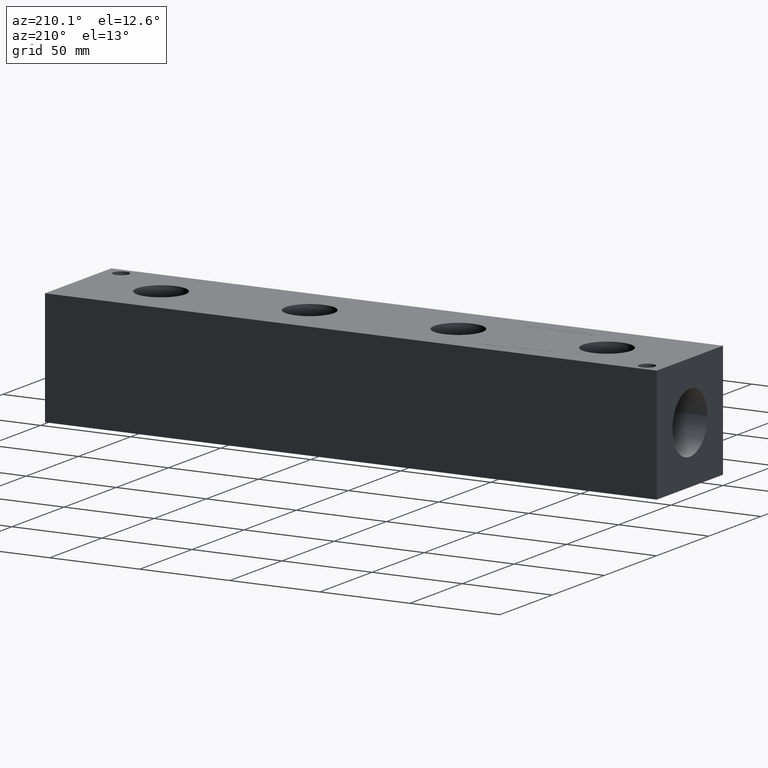
[diagram: clean part render]
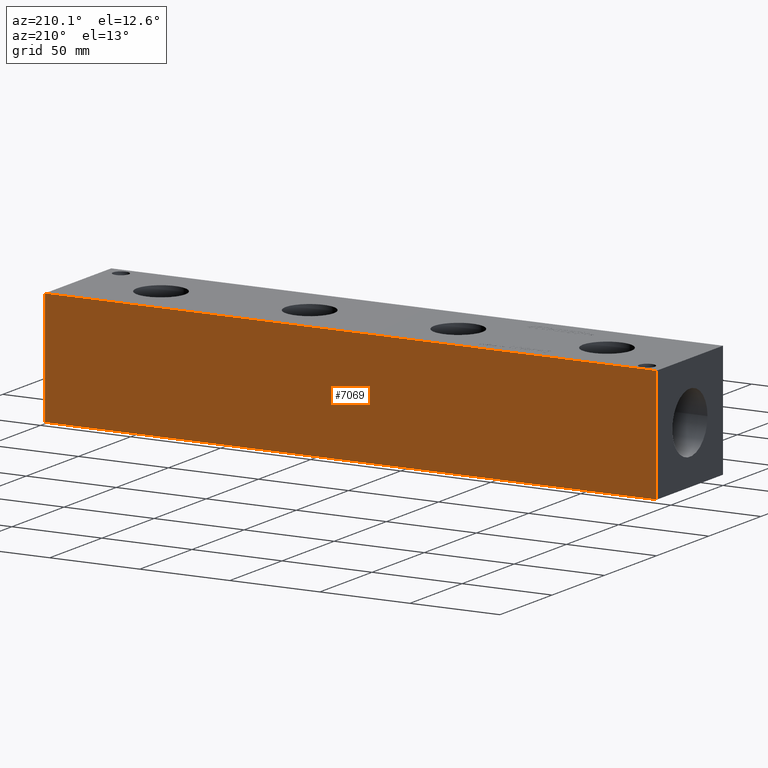
[diagram: same view with one face highlighted and labeled with its STEP entity id]
A machine part, auxiliary view. The second image highlights one B-rep face of the part: STEP entity #7069.
In plain terms, the highlighted planar face has unit normal (0, 1, 0).
Its self-contained STEP definition (entity closure, byte-faithful):
#422=PLANE('',#7444);
#780=FACE_OUTER_BOUND('',#1183,.T.);
#1183=EDGE_LOOP('',(#6304,#6305,#6306,#6307));
#1482=LINE('',#10748,#2194);
#1901=LINE('',#11934,#2613);
#1902=LINE('',#11937,#2614);
#1903=LINE('',#11938,#2615);
#2194=VECTOR('',#7900,10.);
#2613=VECTOR('',#8869,10.);
#2614=VECTOR('',#8872,10.);
#2615=VECTOR('',#8873,10.);
#3077=VERTEX_POINT('',#10745);
#3078=VERTEX_POINT('',#10747);
#3441=VERTEX_POINT('',#11930);
#3443=VERTEX_POINT('',#11936);
#3882=EDGE_CURVE('',#3077,#3078,#1482,.T.);
#4403=EDGE_CURVE('',#3441,#3078,#1901,.T.);
#4404=EDGE_CURVE('',#3443,#3441,#1902,.T.);
#4405=EDGE_CURVE('',#3443,#3077,#1903,.T.);
#6304=ORIENTED_EDGE('',*,*,#4404,.T.);
#6305=ORIENTED_EDGE('',*,*,#4403,.T.);
#6306=ORIENTED_EDGE('',*,*,#3882,.F.);
#6307=ORIENTED_EDGE('',*,*,#4405,.F.);
#7069=ADVANCED_FACE('',(#780),#422,.T.);
#7444=AXIS2_PLACEMENT_3D('',#11935,#8870,#8871);
#7900=DIRECTION('',(-1.,0.,0.));
#8869=DIRECTION('',(0.,0.,1.));
#8870=DIRECTION('center_axis',(0.,1.,0.));
#8871=DIRECTION('ref_axis',(-1.,0.,0.));
#8872=DIRECTION('',(-1.,0.,0.));
#8873=DIRECTION('',(0.,0.,1.));
#10745=CARTESIAN_POINT('',(339.725,63.5,63.5));
#10747=CARTESIAN_POINT('',(0.,63.5,63.5));
#10748=CARTESIAN_POINT('',(339.725,63.5,63.5));
#11930=CARTESIAN_POINT('',(0.,63.5,0.));
#11934=CARTESIAN_POINT('',(0.,63.5,0.));
#11935=CARTESIAN_POINT('Origin',(339.725,63.5,0.));
#11936=CARTESIAN_POINT('',(339.725,63.5,0.));
#11937=CARTESIAN_POINT('',(339.725,63.5,0.));
#11938=CARTESIAN_POINT('',(339.725,63.5,0.));